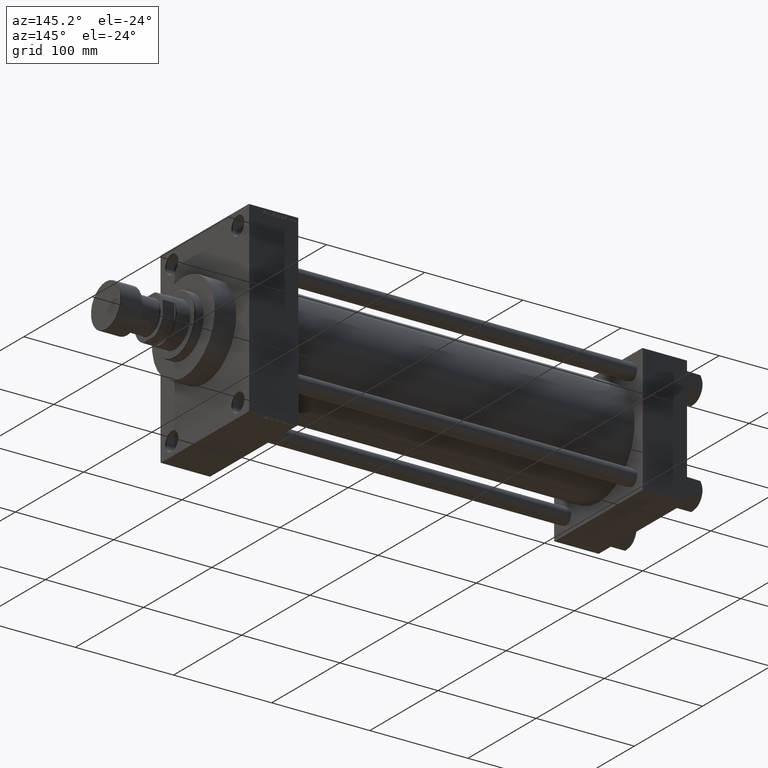
[diagram: clean part render]
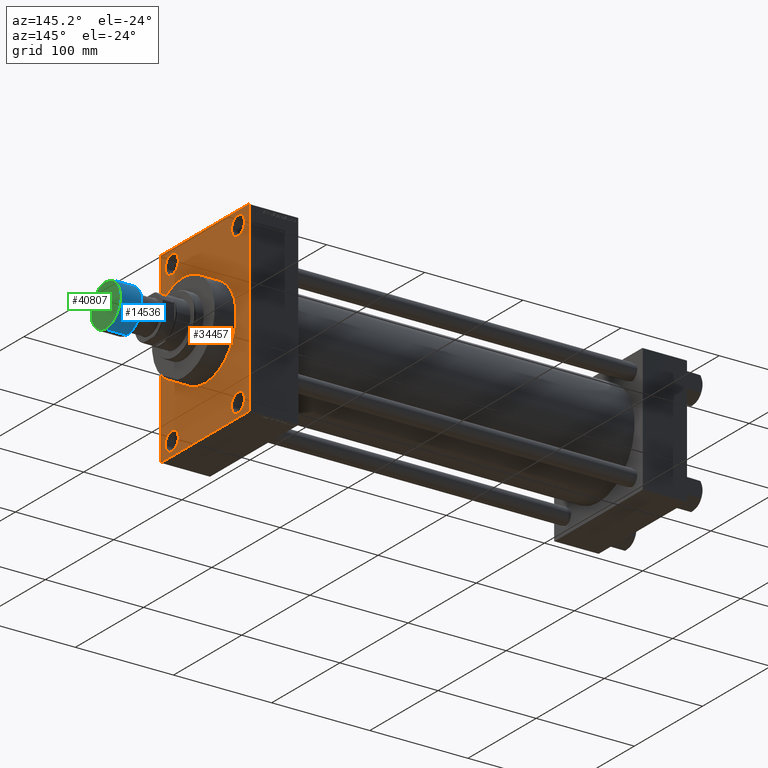
[diagram: same view with three faces highlighted in distinct colors, each labeled with its STEP entity id]
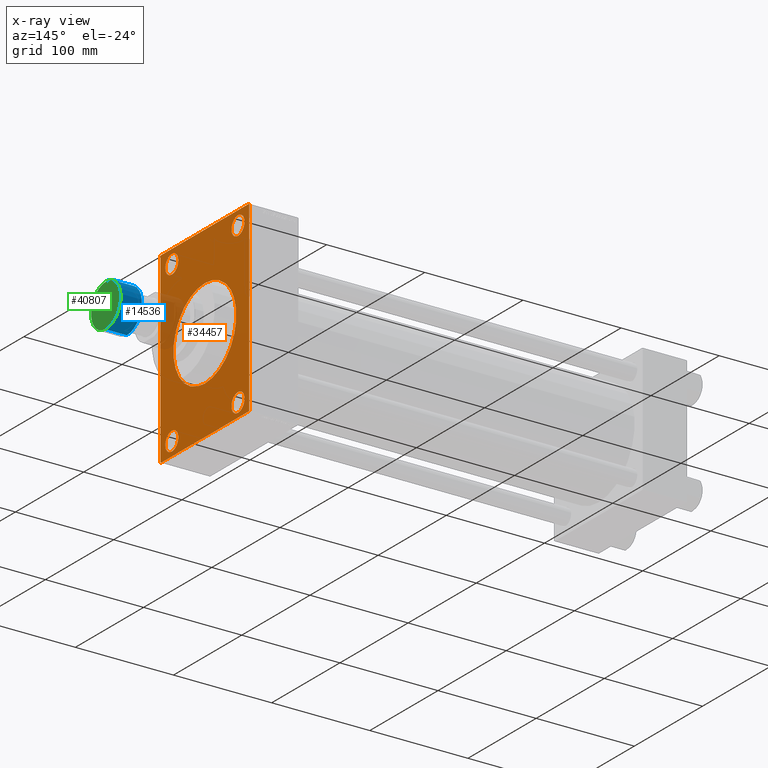
[diagram: x-ray of the same camera — body ghosted, the three highlighted faces saturated]
A machine part, auxiliary view with three faces highlighted in distinct colors.
The next image is the same camera in x-ray (body ghosted, the three faces saturated) — at least one of them is partly hidden behind the body in this view.
Their STEP definitions:

[orange] entity #34457 — the highlighted planar face has unit normal (-1, 0, 0).
#448 = FACE_BOUND ( 'NONE', #4617, .T. ) ;
#648 = VERTEX_POINT ( 'NONE', #37783 ) ;
#656 = EDGE_CURVE ( 'NONE', #24235, #16524, #814, .T. ) ;
#814 = LINE ( 'NONE', #38490, #17531 ) ;
#928 = CARTESIAN_POINT ( 'NONE',  ( 445.9999999999999432, 65.00000000000000000, 94.50000000000005684 ) ) ;
#1263 = VERTEX_POINT ( 'NONE', #36352 ) ;
#1328 = ORIENTED_EDGE ( 'NONE', *, *, #23452, .T. ) ;
#3623 = CIRCLE ( 'NONE', #5929, 46.00000000000000000 ) ;
#4095 = CARTESIAN_POINT ( 'NONE',  ( 445.9999999999999432, 0.000000000000000000, 0.000000000000000000 ) ) ;
#4377 = CARTESIAN_POINT ( 'NONE',  ( 445.9999999999999432, 48.50000000000000000, 81.00000000000000000 ) ) ;
#4535 = AXIS2_PLACEMENT_3D ( 'NONE', #34809, #5374, #8542 ) ;
#4617 = EDGE_LOOP ( 'NONE', ( #46624, #1328 ) ) ;
#4665 = AXIS2_PLACEMENT_3D ( 'NONE', #5861, #20712, #8556 ) ;
#4803 = DIRECTION ( 'NONE',  ( -1.000000000000000000, 0.000000000000000000, -0.000000000000000000 ) ) ;
#5374 = DIRECTION ( 'NONE',  ( -1.000000000000000000, -0.000000000000000000, -0.000000000000000000 ) ) ;
#5627 = CARTESIAN_POINT ( 'NONE',  ( 445.9999999999999432, 65.00000000000000000, 95.00000000000000000 ) ) ;
#5798 = LINE ( 'NONE', #35478, #36012 ) ;
#5861 = CARTESIAN_POINT ( 'NONE',  ( 445.9999999999999432, 0.000000000000000000, 0.000000000000000000 ) ) ;
#5929 = AXIS2_PLACEMENT_3D ( 'NONE', #4095, #33774, #41081 ) ;
#6037 = EDGE_CURVE ( 'NONE', #22871, #43232, #46713, .T. ) ;
#6818 = VERTEX_POINT ( 'NONE', #15932 ) ;
#6894 = DIRECTION ( 'NONE',  ( -1.000000000000000000, -0.000000000000000000, -0.000000000000000000 ) ) ;
#7371 = DIRECTION ( 'NONE',  ( 0.000000000000000000, 0.000000000000000000, 1.000000000000000000 ) ) ;
#7456 = EDGE_CURVE ( 'NONE', #46410, #16824, #37006, .T. ) ;
#7541 = ORIENTED_EDGE ( 'NONE', *, *, #12599, .T. ) ;
#7563 = CARTESIAN_POINT ( 'NONE',  ( 445.9999999999999432, 65.00000000000000000, -94.50000000000002842 ) ) ;
#7638 = EDGE_LOOP ( 'NONE', ( #24173, #34756, #26170, #35785, #39901, #11028, #7541, #41675 ) ) ;
#8239 = AXIS2_PLACEMENT_3D ( 'NONE', #27861, #8876, #31979 ) ;
#8542 = DIRECTION ( 'NONE',  ( 0.000000000000000000, 0.000000000000000000, 1.000000000000000000 ) ) ;
#8556 = DIRECTION ( 'NONE',  ( 0.000000000000000000, 0.000000000000000000, -1.000000000000000000 ) ) ;
#8876 = DIRECTION ( 'NONE',  ( -1.000000000000000000, -0.000000000000000000, -0.000000000000000000 ) ) ;
#9240 = ORIENTED_EDGE ( 'NONE', *, *, #21670, .T. ) ;
#9409 = AXIS2_PLACEMENT_3D ( 'NONE', #26116, #6894, #7371 ) ;
#9615 = CARTESIAN_POINT ( 'NONE',  ( 445.9999999999999432, 65.00000000000000000, 95.00000000000000000 ) ) ;
#9632 = CARTESIAN_POINT ( 'NONE',  ( 445.9999999999999432, -48.50000000000000000, 71.50000000000004263 ) ) ;
#9894 = CARTESIAN_POINT ( 'NONE',  ( 445.9999999999999432, -48.50000000000000000, -90.49999999999995737 ) ) ;
#10850 = VECTOR ( 'NONE', #29826, 1000.000000000000114 ) ;
#11028 = ORIENTED_EDGE ( 'NONE', *, *, #28802, .T. ) ;
#11450 = ORIENTED_EDGE ( 'NONE', *, *, #33383, .T. ) ;
#11678 = EDGE_CURVE ( 'NONE', #46410, #18807, #5798, .T. ) ;
#11755 = CARTESIAN_POINT ( 'NONE',  ( 445.9999999999999432, -64.50000000000000000, -95.00000000000002842 ) ) ;
#11993 = DIRECTION ( 'NONE',  ( 0.000000000000000000, 0.000000000000000000, -1.000000000000000000 ) ) ;
#12211 = VERTEX_POINT ( 'NONE', #23007 ) ;
#12599 = EDGE_CURVE ( 'NONE', #32661, #29601, #16585, .T. ) ;
#12940 = CARTESIAN_POINT ( 'NONE',  ( 445.9999999999999432, 48.50000000000000000, 81.00000000000000000 ) ) ;
#14686 = CARTESIAN_POINT ( 'NONE',  ( 445.9999999999999432, -48.50000000000000000, 81.00000000000000000 ) ) ;
#14737 = DIRECTION ( 'NONE',  ( -1.000000000000000000, -0.000000000000000000, -0.000000000000000000 ) ) ;
#15362 = EDGE_CURVE ( 'NONE', #1263, #12211, #15960, .T. ) ;
#15546 = CARTESIAN_POINT ( 'NONE',  ( 445.9999999999999432, 48.50000000000000000, -71.50000000000004263 ) ) ;
#15631 = DIRECTION ( 'NONE',  ( 0.000000000000000000, 0.000000000000000000, 1.000000000000000000 ) ) ;
#15689 = LINE ( 'NONE', #30531, #10850 ) ;
#15757 = DIRECTION ( 'NONE',  ( -0.000000000000000000, 0.000000000000000000, 1.000000000000000000 ) ) ;
#15782 = CARTESIAN_POINT ( 'NONE',  ( 445.9999999999999432, -64.50000000000000000, -95.00000000000002842 ) ) ;
#15932 = CARTESIAN_POINT ( 'NONE',  ( 445.9999999999999432, 5.633375276077824704E-15, -46.00000000000000000 ) ) ;
#15946 = EDGE_LOOP ( 'NONE', ( #28354, #37213 ) ) ;
#15960 = CIRCLE ( 'NONE', #26086, 9.499999999999953815 ) ;
#16524 = VERTEX_POINT ( 'NONE', #21019 ) ;
#16585 = LINE ( 'NONE', #5627, #35249 ) ;
#16591 = DIRECTION ( 'NONE',  ( 0.000000000000000000, 0.000000000000000000, 1.000000000000000000 ) ) ;
#16824 = VERTEX_POINT ( 'NONE', #22123 ) ;
#17227 = DIRECTION ( 'NONE',  ( 0.000000000000000000, -1.000000000000000000, 0.000000000000000000 ) ) ;
#17420 = CARTESIAN_POINT ( 'NONE',  ( 445.9999999999999432, -48.50000000000000000, 90.49999999999995737 ) ) ;
#17531 = VECTOR ( 'NONE', #11993, 1000.000000000000000 ) ;
#17585 = CARTESIAN_POINT ( 'NONE',  ( 445.9999999999999432, 64.50000000000005684, 95.00000000000000000 ) ) ;
#17649 = ORIENTED_EDGE ( 'NONE', *, *, #19028, .T. ) ;
#18525 = DIRECTION ( 'NONE',  ( -0.000000000000000000, 0.7071067811865474617, 0.7071067811865474617 ) ) ;
#18807 = VERTEX_POINT ( 'NONE', #15782 ) ;
#18936 = FACE_BOUND ( 'NONE', #29853, .T. ) ;
#18968 = ORIENTED_EDGE ( 'NONE', *, *, #15362, .T. ) ;
#19028 = EDGE_CURVE ( 'NONE', #12211, #1263, #31464, .T. ) ;
#19461 = DIRECTION ( 'NONE',  ( 0.000000000000000000, 0.000000000000000000, 1.000000000000000000 ) ) ;
#19533 = DIRECTION ( 'NONE',  ( 0.000000000000000000, 0.7071067811865376918, -0.7071067811865574537 ) ) ;
#19631 = VERTEX_POINT ( 'NONE', #17420 ) ;
#20050 = CARTESIAN_POINT ( 'NONE',  ( 445.9999999999999432, -64.50000000000000000, 94.99999999999998579 ) ) ;
#20119 = FACE_BOUND ( 'NONE', #24761, .T. ) ;
#20158 = CARTESIAN_POINT ( 'NONE',  ( 445.9999999999999432, -65.00000000000000000, 94.49999999999998579 ) ) ;
#20635 = CARTESIAN_POINT ( 'NONE',  ( 445.9999999999999432, 64.50000000000005684, 95.00000000000000000 ) ) ;
#20712 = DIRECTION ( 'NONE',  ( 1.000000000000000000, 0.000000000000000000, 0.000000000000000000 ) ) ;
#21019 = CARTESIAN_POINT ( 'NONE',  ( 445.9999999999999432, -65.00000000000000000, -94.50000000000001421 ) ) ;
#21155 = VECTOR ( 'NONE', #46127, 1000.000000000000000 ) ;
#21191 = VERTEX_POINT ( 'NONE', #9894 ) ;
#21542 = DIRECTION ( 'NONE',  ( 0.000000000000000000, 0.000000000000000000, 1.000000000000000000 ) ) ;
#21670 = EDGE_CURVE ( 'NONE', #648, #21191, #22271, .T. ) ;
#22123 = CARTESIAN_POINT ( 'NONE',  ( 445.9999999999999432, 65.00000000000000000, -94.50000000000002842 ) ) ;
#22271 = CIRCLE ( 'NONE', #8239, 9.499999999999953815 ) ;
#22871 = VERTEX_POINT ( 'NONE', #31938 ) ;
#23007 = CARTESIAN_POINT ( 'NONE',  ( 445.9999999999999432, 48.50000000000000000, 90.49999999999995737 ) ) ;
#23452 = EDGE_CURVE ( 'NONE', #43232, #22871, #34733, .T. ) ;
#23705 = AXIS2_PLACEMENT_3D ( 'NONE', #4377, #41354, #19461 ) ;
#24137 = EDGE_LOOP ( 'NONE', ( #11450, #9240 ) ) ;
#24173 = ORIENTED_EDGE ( 'NONE', *, *, #656, .T. ) ;
#24235 = VERTEX_POINT ( 'NONE', #20158 ) ;
#24761 = EDGE_LOOP ( 'NONE', ( #18968, #17649 ) ) ;
#25066 = DIRECTION ( 'NONE',  ( -1.000000000000000000, -0.000000000000000000, -0.000000000000000000 ) ) ;
#25441 = CARTESIAN_POINT ( 'NONE',  ( 445.9999999999999432, 48.50000000000000000, -81.00000000000000000 ) ) ;
#25642 = DIRECTION ( 'NONE',  ( -1.000000000000000000, -0.000000000000000000, -0.000000000000000000 ) ) ;
#26086 = AXIS2_PLACEMENT_3D ( 'NONE', #12940, #27791, #16591 ) ;
#26116 = CARTESIAN_POINT ( 'NONE',  ( 445.9999999999999432, 48.50000000000000000, -81.00000000000000000 ) ) ;
#26170 = ORIENTED_EDGE ( 'NONE', *, *, #11678, .F. ) ;
#26371 = LINE ( 'NONE', #11755, #27683 ) ;
#26572 = EDGE_CURVE ( 'NONE', #19631, #41313, #43376, .T. ) ;
#27145 = VECTOR ( 'NONE', #29285, 1000.000000000000114 ) ;
#27376 = CIRCLE ( 'NONE', #32053, 9.499999999999953815 ) ;
#27683 = VECTOR ( 'NONE', #19533, 999.9999999999998863 ) ;
#27791 = DIRECTION ( 'NONE',  ( -1.000000000000000000, -0.000000000000000000, -0.000000000000000000 ) ) ;
#27861 = CARTESIAN_POINT ( 'NONE',  ( 445.9999999999999432, -48.50000000000000000, -81.00000000000000000 ) ) ;
#28354 = ORIENTED_EDGE ( 'NONE', *, *, #29927, .F. ) ;
#28802 = EDGE_CURVE ( 'NONE', #42181, #32661, #43374, .T. ) ;
#29285 = DIRECTION ( 'NONE',  ( 0.000000000000000000, -0.7071067811865474617, 0.7071067811865474617 ) ) ;
#29445 = EDGE_CURVE ( 'NONE', #29601, #24235, #15689, .T. ) ;
#29601 = VERTEX_POINT ( 'NONE', #20050 ) ;
#29826 = DIRECTION ( 'NONE',  ( -0.000000000000000000, -0.7071067811865474617, -0.7071067811865474617 ) ) ;
#29853 = EDGE_LOOP ( 'NONE', ( #34192, #32039 ) ) ;
#29927 = EDGE_CURVE ( 'NONE', #36571, #6818, #46601, .T. ) ;
#30531 = CARTESIAN_POINT ( 'NONE',  ( 445.9999999999999432, -65.00000000000000000, 94.49999999999998579 ) ) ;
#31464 = CIRCLE ( 'NONE', #23705, 9.499999999999953815 ) ;
#31589 = CIRCLE ( 'NONE', #37819, 9.499999999999953815 ) ;
#31652 = CARTESIAN_POINT ( 'NONE',  ( 445.9999999999999432, -48.50000000000000000, -81.00000000000000000 ) ) ;
#31938 = CARTESIAN_POINT ( 'NONE',  ( 445.9999999999999432, 48.50000000000000000, -90.49999999999995737 ) ) ;
#31979 = DIRECTION ( 'NONE',  ( 0.000000000000000000, 0.000000000000000000, 1.000000000000000000 ) ) ;
#32039 = ORIENTED_EDGE ( 'NONE', *, *, #26572, .T. ) ;
#32053 = AXIS2_PLACEMENT_3D ( 'NONE', #31652, #25066, #43319 ) ;
#32661 = VERTEX_POINT ( 'NONE', #20635 ) ;
#33161 = EDGE_CURVE ( 'NONE', #42181, #16824, #45893, .T. ) ;
#33383 = EDGE_CURVE ( 'NONE', #21191, #648, #27376, .T. ) ;
#33766 = FACE_BOUND ( 'NONE', #24137, .T. ) ;
#33774 = DIRECTION ( 'NONE',  ( 1.000000000000000000, 0.000000000000000000, 0.000000000000000000 ) ) ;
#34192 = ORIENTED_EDGE ( 'NONE', *, *, #47094, .T. ) ;
#34241 = CARTESIAN_POINT ( 'NONE',  ( 445.9999999999999432, 0.000000000000000000, 0.000000000000000000 ) ) ;
#34457 = ADVANCED_FACE ( 'NONE', ( #18936, #33766, #448, #20119, #37898, #44961 ), #38126, .F. ) ;
#34733 = CIRCLE ( 'NONE', #46364, 9.499999999999953815 ) ;
#34756 = ORIENTED_EDGE ( 'NONE', *, *, #45186, .T. ) ;
#34809 = CARTESIAN_POINT ( 'NONE',  ( 445.9999999999999432, -48.50000000000000000, 81.00000000000000000 ) ) ;
#35249 = VECTOR ( 'NONE', #38013, 1000.000000000000000 ) ;
#35478 = CARTESIAN_POINT ( 'NONE',  ( 445.9999999999999432, 65.00000000000000000, -95.00000000000002842 ) ) ;
#35785 = ORIENTED_EDGE ( 'NONE', *, *, #7456, .T. ) ;
#36012 = VECTOR ( 'NONE', #17227, 1000.000000000000000 ) ;
#36352 = CARTESIAN_POINT ( 'NONE',  ( 445.9999999999999432, 48.50000000000000000, 71.50000000000004263 ) ) ;
#36571 = VERTEX_POINT ( 'NONE', #37285 ) ;
#37006 = LINE ( 'NONE', #7563, #47524 ) ;
#37213 = ORIENTED_EDGE ( 'NONE', *, *, #42049, .F. ) ;
#37285 = CARTESIAN_POINT ( 'NONE',  ( 445.9999999999999432, 0.000000000000000000, 46.00000000000000000 ) ) ;
#37783 = CARTESIAN_POINT ( 'NONE',  ( 445.9999999999999432, -48.50000000000000000, -71.50000000000004263 ) ) ;
#37819 = AXIS2_PLACEMENT_3D ( 'NONE', #14686, #25642, #15631 ) ;
#37898 = FACE_BOUND ( 'NONE', #15946, .T. ) ;
#38013 = DIRECTION ( 'NONE',  ( 0.000000000000000000, -1.000000000000000000, -1.067522139062650425E-16 ) ) ;
#38126 = PLANE ( 'NONE',  #46838 ) ;
#38490 = CARTESIAN_POINT ( 'NONE',  ( 445.9999999999999432, -65.00000000000000000, 94.99999999999998579 ) ) ;
#39901 = ORIENTED_EDGE ( 'NONE', *, *, #33161, .F. ) ;
#40665 = CARTESIAN_POINT ( 'NONE',  ( 445.9999999999999432, 64.50000000000000000, -95.00000000000002842 ) ) ;
#41081 = DIRECTION ( 'NONE',  ( 0.000000000000000000, 0.000000000000000000, -1.000000000000000000 ) ) ;
#41313 = VERTEX_POINT ( 'NONE', #9632 ) ;
#41354 = DIRECTION ( 'NONE',  ( -1.000000000000000000, -0.000000000000000000, -0.000000000000000000 ) ) ;
#41675 = ORIENTED_EDGE ( 'NONE', *, *, #29445, .T. ) ;
#42049 = EDGE_CURVE ( 'NONE', #6818, #36571, #3623, .T. ) ;
#42181 = VERTEX_POINT ( 'NONE', #928 ) ;
#43232 = VERTEX_POINT ( 'NONE', #15546 ) ;
#43319 = DIRECTION ( 'NONE',  ( 0.000000000000000000, 0.000000000000000000, 1.000000000000000000 ) ) ;
#43374 = LINE ( 'NONE', #17585, #27145 ) ;
#43376 = CIRCLE ( 'NONE', #4535, 9.499999999999953815 ) ;
#44961 = FACE_OUTER_BOUND ( 'NONE', #7638, .T. ) ;
#45186 = EDGE_CURVE ( 'NONE', #16524, #18807, #26371, .T. ) ;
#45893 = LINE ( 'NONE', #9615, #21155 ) ;
#46127 = DIRECTION ( 'NONE',  ( 0.000000000000000000, 0.000000000000000000, -1.000000000000000000 ) ) ;
#46364 = AXIS2_PLACEMENT_3D ( 'NONE', #25441, #14737, #21542 ) ;
#46410 = VERTEX_POINT ( 'NONE', #40665 ) ;
#46601 = CIRCLE ( 'NONE', #4665, 46.00000000000000000 ) ;
#46624 = ORIENTED_EDGE ( 'NONE', *, *, #6037, .T. ) ;
#46713 = CIRCLE ( 'NONE', #9409, 9.499999999999953815 ) ;
#46838 = AXIS2_PLACEMENT_3D ( 'NONE', #34241, #4803, #15757 ) ;
#47094 = EDGE_CURVE ( 'NONE', #41313, #19631, #31589, .T. ) ;
#47524 = VECTOR ( 'NONE', #18525, 1000.000000000000114 ) ;

[blue] entity #14536 — the highlighted cylindrical surface (edge-blend (fillet) strip) has radius 22 mm, axis along (1, 0, 0).
#1092 = VERTEX_POINT ( 'NONE', #24206 ) ;
#1166 = AXIS2_PLACEMENT_3D ( 'NONE', #28493, #36270, #46969 ) ;
#2133 = ORIENTED_EDGE ( 'NONE', *, *, #10571, .T. ) ;
#3950 = CIRCLE ( 'NONE', #24155, 22.00000000000000000 ) ;
#5394 = CYLINDRICAL_SURFACE ( 'NONE', #1166, 22.00000000000000000 ) ;
#5580 = EDGE_CURVE ( 'NONE', #47001, #1092, #3950, .T. ) ;
#6300 = VERTEX_POINT ( 'NONE', #14851 ) ;
#7421 = LINE ( 'NONE', #41230, #46115 ) ;
#7606 = ORIENTED_EDGE ( 'NONE', *, *, #36340, .T. ) ;
#9425 = DIRECTION ( 'NONE',  ( 1.000000000000000000, 0.000000000000000000, 0.000000000000000000 ) ) ;
#10571 = EDGE_CURVE ( 'NONE', #6300, #27121, #33635, .T. ) ;
#13304 = DIRECTION ( 'NONE',  ( 0.000000000000000000, 0.000000000000000000, 1.000000000000000000 ) ) ;
#14536 = ADVANCED_FACE ( 'NONE', ( #38715 ), #5394, .T. ) ;
#14851 = CARTESIAN_POINT ( 'NONE',  ( 22.00000000000000000, 0.000000000000000000, -21.50000000000000000 ) ) ;
#16003 = DIRECTION ( 'NONE',  ( 0.000000000000000000, 0.000000000000000000, 1.000000000000000000 ) ) ;
#16747 = CARTESIAN_POINT ( 'NONE',  ( 0.000000000000000000, 0.000000000000000000, -0.5000000000000004441 ) ) ;
#17439 = DIRECTION ( 'NONE',  ( 1.000000000000000000, 0.000000000000000000, 0.000000000000000000 ) ) ;
#19287 = CARTESIAN_POINT ( 'NONE',  ( -22.00000000000000000, 2.694222958124176809E-15, -0.5000000000000004441 ) ) ;
#20171 = ORIENTED_EDGE ( 'NONE', *, *, #42102, .F. ) ;
#20363 = CARTESIAN_POINT ( 'NONE',  ( 22.00000000000000000, 0.000000000000000000, -22.00000000000000000 ) ) ;
#24155 = AXIS2_PLACEMENT_3D ( 'NONE', #16747, #38396, #9425 ) ;
#24206 = CARTESIAN_POINT ( 'NONE',  ( 22.00000000000000000, 0.000000000000000000, -0.5000000000000004441 ) ) ;
#24432 = ORIENTED_EDGE ( 'NONE', *, *, #5580, .T. ) ;
#26163 = DIRECTION ( 'NONE',  ( 0.000000000000000000, 0.000000000000000000, 1.000000000000000000 ) ) ;
#26967 = LINE ( 'NONE', #20363, #42462 ) ;
#27121 = VERTEX_POINT ( 'NONE', #43012 ) ;
#28215 = AXIS2_PLACEMENT_3D ( 'NONE', #32038, #13304, #17439 ) ;
#28493 = CARTESIAN_POINT ( 'NONE',  ( 0.000000000000000000, 0.000000000000000000, -22.00000000000000000 ) ) ;
#32038 = CARTESIAN_POINT ( 'NONE',  ( 0.000000000000000000, 0.000000000000000000, -21.50000000000000000 ) ) ;
#33635 = CIRCLE ( 'NONE', #28215, 22.00000000000000000 ) ;
#36270 = DIRECTION ( 'NONE',  ( 0.000000000000000000, 0.000000000000000000, 1.000000000000000000 ) ) ;
#36340 = EDGE_CURVE ( 'NONE', #27121, #47001, #7421, .T. ) ;
#38396 = DIRECTION ( 'NONE',  ( -0.000000000000000000, -0.000000000000000000, -1.000000000000000000 ) ) ;
#38715 = FACE_OUTER_BOUND ( 'NONE', #39310, .T. ) ;
#39310 = EDGE_LOOP ( 'NONE', ( #2133, #7606, #24432, #20171 ) ) ;
#41230 = CARTESIAN_POINT ( 'NONE',  ( -22.00000000000000000, 2.694222958124176809E-15, -22.00000000000000000 ) ) ;
#42102 = EDGE_CURVE ( 'NONE', #6300, #1092, #26967, .T. ) ;
#42462 = VECTOR ( 'NONE', #16003, 1000.000000000000000 ) ;
#43012 = CARTESIAN_POINT ( 'NONE',  ( -22.00000000000000000, 2.694222958124176809E-15, -21.50000000000000000 ) ) ;
#46115 = VECTOR ( 'NONE', #26163, 1000.000000000000000 ) ;
#46969 = DIRECTION ( 'NONE',  ( 1.000000000000000000, 0.000000000000000000, 0.000000000000000000 ) ) ;
#47001 = VERTEX_POINT ( 'NONE', #19287 ) ;

[green] entity #40807 — the highlighted planar face has unit normal (1, 0, 0).
#1898 = PLANE ( 'NONE',  #27686 ) ;
#3585 = CIRCLE ( 'NONE', #17571, 21.50000000000000000 ) ;
#6394 = EDGE_CURVE ( 'NONE', #47252, #10624, #31158, .T. ) ;
#6836 = CARTESIAN_POINT ( 'NONE',  ( -21.50000000000000000, 2.663606788145493022E-15, 0.000000000000000000 ) ) ;
#8891 = CARTESIAN_POINT ( 'NONE',  ( 0.000000000000000000, 0.000000000000000000, 0.000000000000000000 ) ) ;
#10624 = VERTEX_POINT ( 'NONE', #43231 ) ;
#11328 = ORIENTED_EDGE ( 'NONE', *, *, #6394, .T. ) ;
#17213 = FACE_OUTER_BOUND ( 'NONE', #39833, .T. ) ;
#17571 = AXIS2_PLACEMENT_3D ( 'NONE', #8891, #23751, #34690 ) ;
#23401 = AXIS2_PLACEMENT_3D ( 'NONE', #24239, #38588, #31777 ) ;
#23751 = DIRECTION ( 'NONE',  ( 0.000000000000000000, 0.000000000000000000, 1.000000000000000000 ) ) ;
#24239 = CARTESIAN_POINT ( 'NONE',  ( 0.000000000000000000, 0.000000000000000000, 0.000000000000000000 ) ) ;
#27686 = AXIS2_PLACEMENT_3D ( 'NONE', #46419, #32056, #46892 ) ;
#31158 = CIRCLE ( 'NONE', #23401, 21.50000000000000000 ) ;
#31777 = DIRECTION ( 'NONE',  ( 1.000000000000000000, 0.000000000000000000, 0.000000000000000000 ) ) ;
#32056 = DIRECTION ( 'NONE',  ( 0.000000000000000000, 0.000000000000000000, 1.000000000000000000 ) ) ;
#34690 = DIRECTION ( 'NONE',  ( 1.000000000000000000, 0.000000000000000000, 0.000000000000000000 ) ) ;
#35364 = ORIENTED_EDGE ( 'NONE', *, *, #41069, .T. ) ;
#38588 = DIRECTION ( 'NONE',  ( 0.000000000000000000, 0.000000000000000000, 1.000000000000000000 ) ) ;
#39833 = EDGE_LOOP ( 'NONE', ( #35364, #11328 ) ) ;
#40807 = ADVANCED_FACE ( 'NONE', ( #17213 ), #1898, .T. ) ;
#41069 = EDGE_CURVE ( 'NONE', #10624, #47252, #3585, .T. ) ;
#43231 = CARTESIAN_POINT ( 'NONE',  ( 21.50000000000000000, 0.000000000000000000, 0.000000000000000000 ) ) ;
#46419 = CARTESIAN_POINT ( 'NONE',  ( 0.000000000000000000, 0.000000000000000000, 0.000000000000000000 ) ) ;
#46892 = DIRECTION ( 'NONE',  ( 1.000000000000000000, 0.000000000000000000, -0.000000000000000000 ) ) ;
#47252 = VERTEX_POINT ( 'NONE', #6836 ) ;